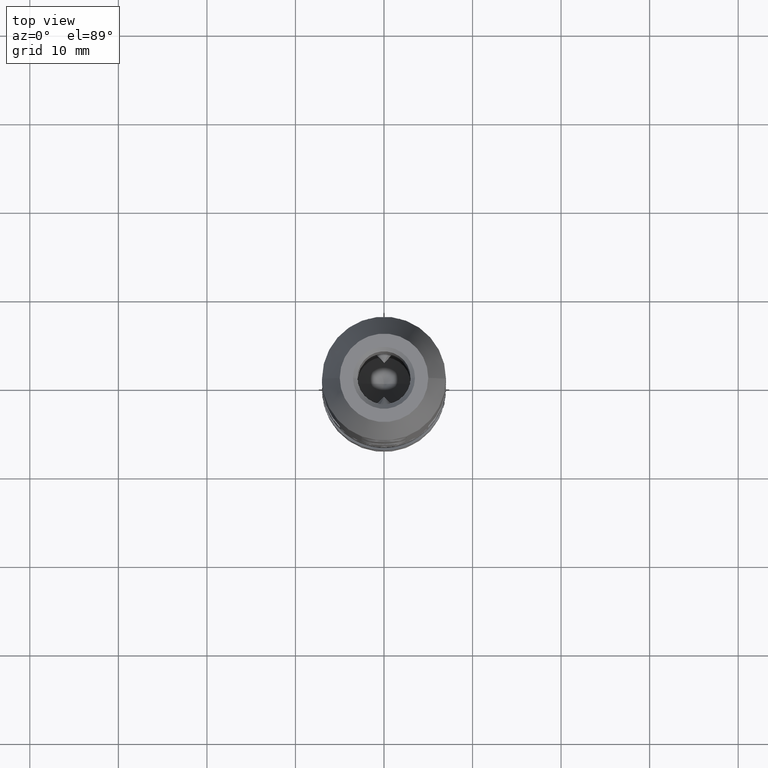
[diagram: clean part render]
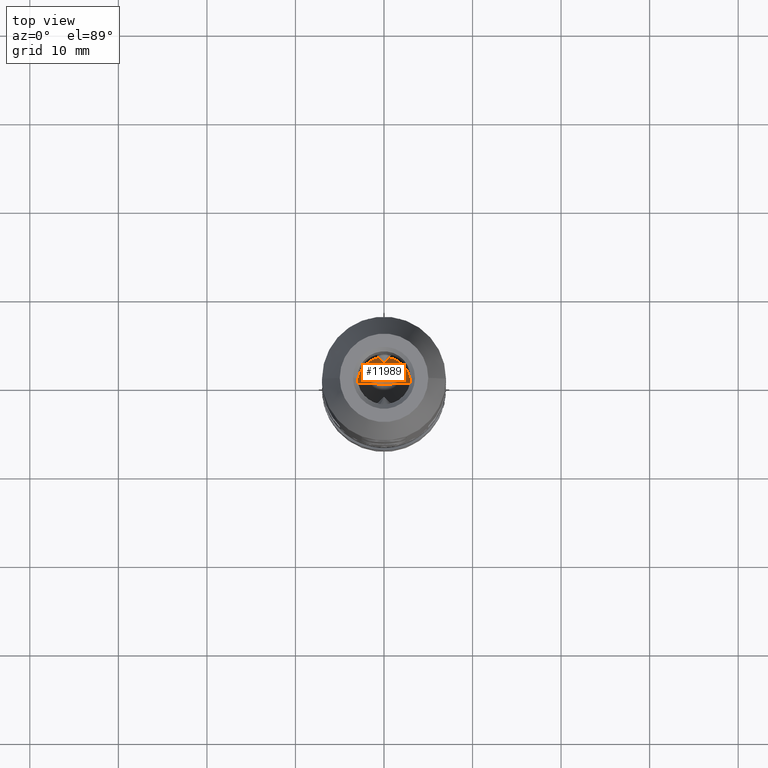
[diagram: same view with one face highlighted and labeled with its STEP entity id]
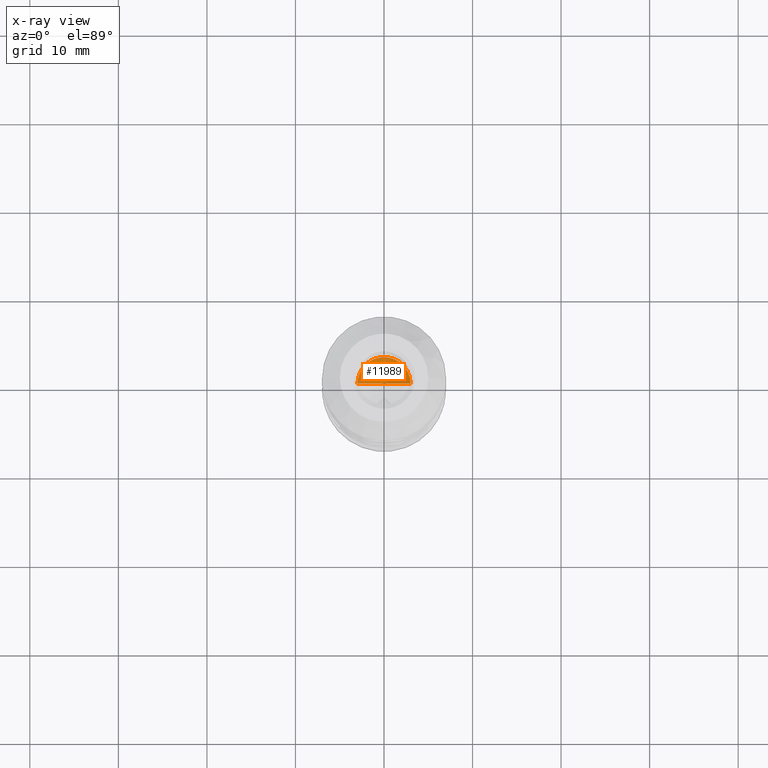
[diagram: x-ray of the same camera — body ghosted, the highlighted face saturated]
A machine part, top view. The second image highlights one B-rep face of the part: STEP entity #11989.
The next image is the same camera in x-ray: the body ghosted, the highlighted face saturated — about 3% of this face is hidden behind the body in this view.
In plain terms, the highlighted conical surface has half-angle 59 deg.
Its self-contained STEP definition (entity closure, byte-faithful):
#1352 = ORIENTED_EDGE ( 'NONE', *, *, #1838, .T. ) ;
#1392 = EDGE_CURVE ( 'NONE', #7500, #2322, #16570, .T. ) ;
#1838 = EDGE_CURVE ( 'NONE', #14134, #7500, #19969, .T. ) ;
#2322 = VERTEX_POINT ( 'NONE', #11096 ) ;
#3370 = CARTESIAN_POINT ( 'NONE',  ( 0.000000000000000000, 0.000000000000000000, -16.00000000000000000 ) ) ;
#4927 = LINE ( 'NONE', #9534, #5914 ) ;
#5904 = ORIENTED_EDGE ( 'NONE', *, *, #1392, .T. ) ;
#5914 = VECTOR ( 'NONE', #15908, 1000.000000000000000 ) ;
#7500 = VERTEX_POINT ( 'NONE', #15875 ) ;
#8029 = DIRECTION ( 'NONE',  ( 1.000000000000000000, 0.000000000000000000, 0.000000000000000000 ) ) ;
#9534 = CARTESIAN_POINT ( 'NONE',  ( -2.999999999999991118, 3.673940397442048528E-16, -16.00000000000000000 ) ) ;
#9668 = CARTESIAN_POINT ( 'NONE',  ( 2.999999999999991118, 0.000000000000000000, -16.00000000000000000 ) ) ;
#10018 = CARTESIAN_POINT ( 'NONE',  ( -9.740024468816393133E-15, 0.000000000000000000, -17.80258185708268570 ) ) ;
#10709 = VECTOR ( 'NONE', #12844, 1000.000000000000000 ) ;
#11096 = CARTESIAN_POINT ( 'NONE',  ( -2.999999999999991118, 3.673940397442049514E-16, -16.00000000000000000 ) ) ;
#11989 = ADVANCED_FACE ( 'NONE', ( #16878 ), #19306, .F. ) ;
#12844 = DIRECTION ( 'NONE',  ( 0.8571673007021102242, 0.000000000000000000, 0.5150380749100577082 ) ) ;
#14134 = VERTEX_POINT ( 'NONE', #10018 ) ;
#14148 = AXIS2_PLACEMENT_3D ( 'NONE', #15939, #19116, #14940 ) ;
#14665 = AXIS2_PLACEMENT_3D ( 'NONE', #3370, #17369, #8029 ) ;
#14940 = DIRECTION ( 'NONE',  ( 1.000000000000000000, 0.000000000000000000, 0.000000000000000000 ) ) ;
#15000 = ORIENTED_EDGE ( 'NONE', *, *, #20140, .F. ) ;
#15875 = CARTESIAN_POINT ( 'NONE',  ( 2.999999999999991118, 0.000000000000000000, -16.00000000000000000 ) ) ;
#15908 = DIRECTION ( 'NONE',  ( -0.8571673007021102242, 1.049727191138616107E-16, 0.5150380749100577082 ) ) ;
#15939 = CARTESIAN_POINT ( 'NONE',  ( 0.000000000000000000, 0.000000000000000000, -16.00000000000000000 ) ) ;
#16570 = CIRCLE ( 'NONE', #14665, 2.999999999999991118 ) ;
#16878 = FACE_OUTER_BOUND ( 'NONE', #19889, .T. ) ;
#17369 = DIRECTION ( 'NONE',  ( -0.000000000000000000, -0.000000000000000000, 1.000000000000000000 ) ) ;
#19116 = DIRECTION ( 'NONE',  ( -0.000000000000000000, -0.000000000000000000, 1.000000000000000000 ) ) ;
#19306 = CONICAL_SURFACE ( 'NONE', #14148, 2.999999999999991118, 1.029744258676650315 ) ;
#19889 = EDGE_LOOP ( 'NONE', ( #15000, #1352, #5904 ) ) ;
#19969 = LINE ( 'NONE', #9668, #10709 ) ;
#20140 = EDGE_CURVE ( 'NONE', #14134, #2322, #4927, .T. ) ;